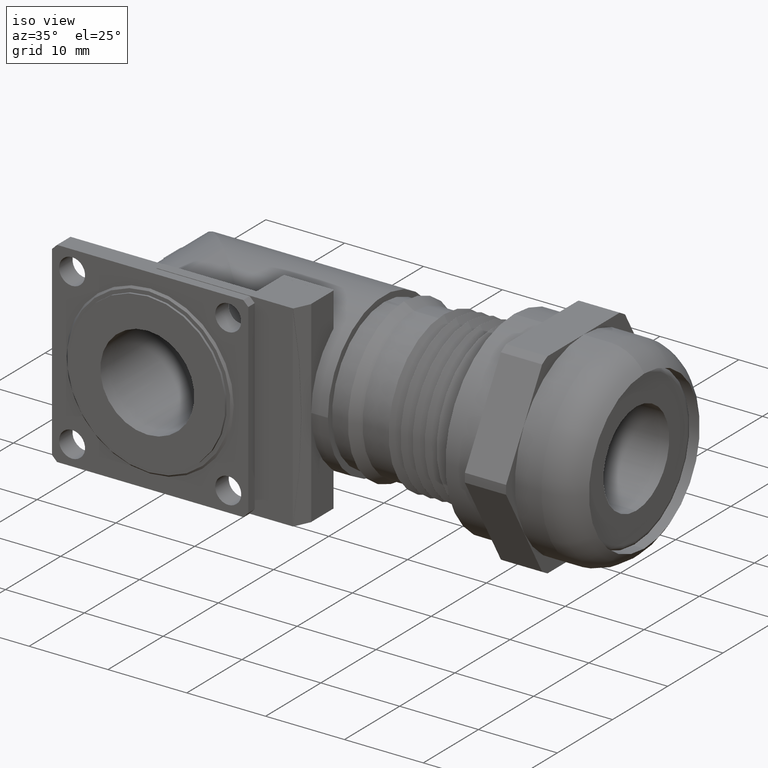
[diagram: clean part render]
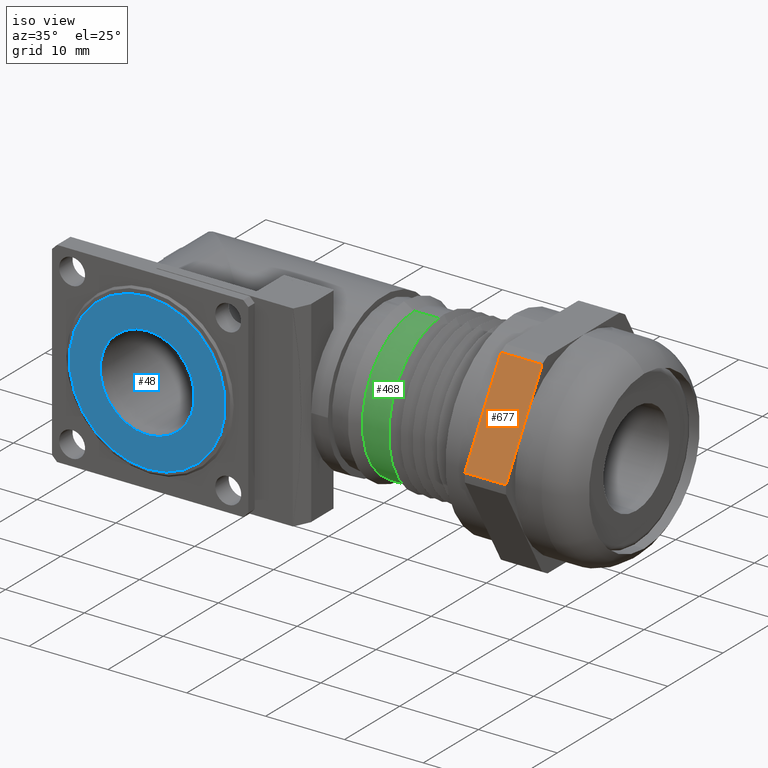
[diagram: same view with three faces highlighted in distinct colors, each labeled with its STEP entity id]
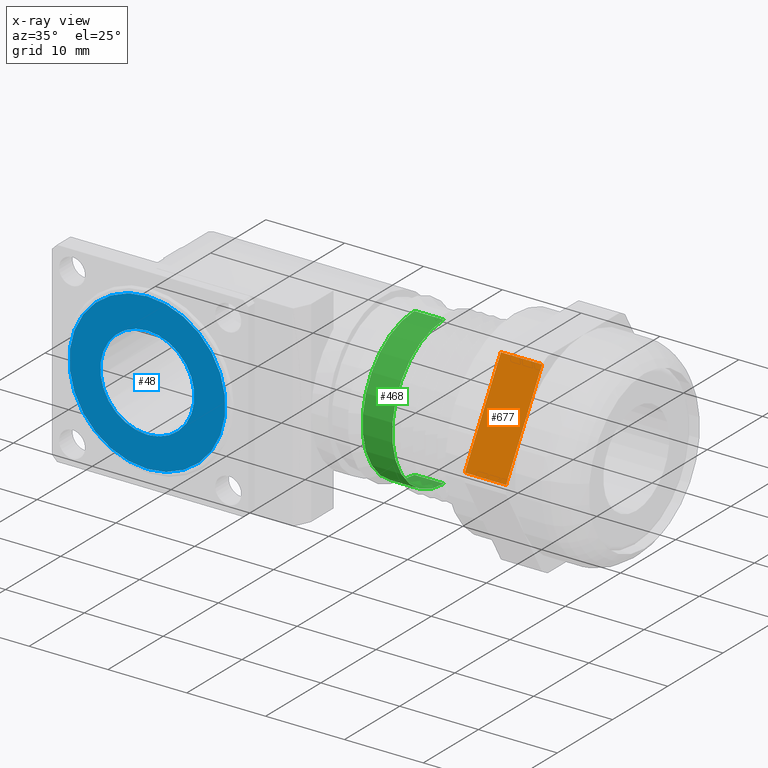
[diagram: x-ray of the same camera — body ghosted, the three highlighted faces saturated]
A machine part, iso view with three faces highlighted in distinct colors.
The next image is the same camera in x-ray (body ghosted, the three faces saturated) — at least one of them is partly hidden behind the body in this view.
Their STEP definitions:

[orange] entity #677 — the highlighted planar face has unit normal (0, -0.866, 0.5).
#299 = EDGE_CURVE ( 'NONE', #1947, #300, #2335, .T. ) ;
#300 = VERTEX_POINT ( 'NONE', #2331 ) ;
#302 = VERTEX_POINT ( 'NONE', #2330 ) ;
#340 = VERTEX_POINT ( 'NONE', #2702 ) ;
#352 = EDGE_CURVE ( 'NONE', #300, #353, #2547, .T. ) ;
#353 = VERTEX_POINT ( 'NONE', #2543 ) ;
#372 = EDGE_CURVE ( 'NONE', #353, #397, #2680, .T. ) ;
#397 = VERTEX_POINT ( 'NONE', #2634 ) ;
#428 = EDGE_CURVE ( 'NONE', #397, #302, #2582, .T. ) ;
#657 = ORIENTED_EDGE ( 'NONE', *, *, #372, .F. ) ;
#662 = ORIENTED_EDGE ( 'NONE', *, *, #1945, .F. ) ;
#663 = ORIENTED_EDGE ( 'NONE', *, *, #428, .F. ) ;
#668 = ORIENTED_EDGE ( 'NONE', *, *, #352, .F. ) ;
#669 = ORIENTED_EDGE ( 'NONE', *, *, #299, .F. ) ;
#677 = ADVANCED_FACE ( 'NONE', ( #2975 ), #2981, .T. ) ;
#678 = EDGE_LOOP ( 'NONE', ( #695, #663, #657, #668, #669, #662 ) ) ;
#695 = ORIENTED_EDGE ( 'NONE', *, *, #1953, .T. ) ;
#1945 = EDGE_CURVE ( 'NONE', #340, #1947, #5200, .T. ) ;
#1947 = VERTEX_POINT ( 'NONE', #5196 ) ;
#1953 = EDGE_CURVE ( 'NONE', #340, #302, #5190, .T. ) ;
#2330 = CARTESIAN_POINT ( 'NONE',  ( 0.9971533900000001400, -0.5529648318954141200, 0.02223681635835987900 ) ) ;
#2331 = CARTESIAN_POINT ( 'NONE',  ( 0.7911456200000003300, -0.2957400638133357300, 0.4677631836416404300 ) ) ;
#2332 = DIRECTION ( 'NONE',  ( 0.0000000000000000000, 0.5000000000000002200, 0.8660254037844383700 ) ) ;
#2333 = VECTOR ( 'NONE', #2332, 39.37007874015748100 ) ;
#2334 = CARTESIAN_POINT ( 'NONE',  ( 0.7911456200000003300, -0.2957400638133359000, 0.4677631836416403200 ) ) ;
#2335 = LINE ( 'NONE', #2334, #2333 ) ;
#2543 = CARTESIAN_POINT ( 'NONE',  ( 0.9971533900000001400, -0.2957400638133357300, 0.4677631836416404300 ) ) ;
#2544 = DIRECTION ( 'NONE',  ( 1.000000000000000000, 0.0000000000000000000, 0.0000000000000000000 ) ) ;
#2545 = VECTOR ( 'NONE', #2544, 39.37007874015748100 ) ;
#2546 = CARTESIAN_POINT ( 'NONE',  ( -0.7897920749122514500, -0.2957400638133357300, 0.4677631836416404300 ) ) ;
#2547 = LINE ( 'NONE', #2546, #2545 ) ;
#2579 = DIRECTION ( 'NONE',  ( 0.0000000000000000000, -0.5000000000000002200, -0.8660254037844384900 ) ) ;
#2580 = VECTOR ( 'NONE', #2579, 39.37007874015749600 ) ;
#2581 = CARTESIAN_POINT ( 'NONE',  ( 0.9971533900000001400, -0.2957400638133359000, 0.4677631836416403200 ) ) ;
#2582 = LINE ( 'NONE', #2581, #2580 ) ;
#2634 = CARTESIAN_POINT ( 'NONE',  ( 0.9971533900000001400, -0.4243524478543747600, 0.2450000000000001600 ) ) ;
#2677 = DIRECTION ( 'NONE',  ( 0.0000000000000000000, -0.5000000000000002200, -0.8660254037844384900 ) ) ;
#2678 = VECTOR ( 'NONE', #2677, 39.37007874015749600 ) ;
#2679 = CARTESIAN_POINT ( 'NONE',  ( 0.9971533900000001400, -0.2957400638133359000, 0.4677631836416403200 ) ) ;
#2680 = LINE ( 'NONE', #2679, #2678 ) ;
#2702 = CARTESIAN_POINT ( 'NONE',  ( 0.7911456200000003300, -0.5529648318954141200, 0.02223681635835984500 ) ) ;
#2975 = FACE_OUTER_BOUND ( 'NONE', #678, .T. ) ;
#2977 = DIRECTION ( 'NONE',  ( 0.0000000000000000000, -0.5000000000000002200, -0.8660254037844384900 ) ) ;
#2978 = DIRECTION ( 'NONE',  ( 0.0000000000000000000, -0.8660254037844386000, 0.5000000000000003300 ) ) ;
#2979 = CARTESIAN_POINT ( 'NONE',  ( -0.7897920749122514500, -0.2957400638133359000, 0.4677631836416403200 ) ) ;
#2980 = AXIS2_PLACEMENT_3D ( 'NONE', #2979, #2978, #2977 ) ;
#2981 = PLANE ( 'NONE',  #2980 ) ;
#5187 = DIRECTION ( 'NONE',  ( 1.000000000000000000, 0.0000000000000000000, 0.0000000000000000000 ) ) ;
#5188 = VECTOR ( 'NONE', #5187, 39.37007874015748100 ) ;
#5189 = CARTESIAN_POINT ( 'NONE',  ( -0.7897920749122514500, -0.5529648318954141200, 0.02223681635835987900 ) ) ;
#5190 = LINE ( 'NONE', #5189, #5188 ) ;
#5196 = CARTESIAN_POINT ( 'NONE',  ( 0.7911456200000003300, -0.4243524478543749800, 0.2450000000000000800 ) ) ;
#5197 = DIRECTION ( 'NONE',  ( 0.0000000000000000000, 0.5000000000000002200, 0.8660254037844383700 ) ) ;
#5198 = VECTOR ( 'NONE', #5197, 39.37007874015748100 ) ;
#5199 = CARTESIAN_POINT ( 'NONE',  ( 0.7911456200000003300, -0.2957400638133359000, 0.4677631836416403200 ) ) ;
#5200 = LINE ( 'NONE', #5199, #5198 ) ;

[blue] entity #48 — the highlighted planar face has unit normal (0, 1, 0).
#5 = ORIENTED_EDGE ( 'NONE', *, *, #39, .T. ) ;
#37 = ORIENTED_EDGE ( 'NONE', *, *, #801, .T. ) ;
#39 = EDGE_CURVE ( 'NONE', #799, #793, #5635, .T. ) ;
#45 = EDGE_LOOP ( 'NONE', ( #37, #5 ) ) ;
#46 = ORIENTED_EDGE ( 'NONE', *, *, #1021, .F. ) ;
#47 = ORIENTED_EDGE ( 'NONE', *, *, #1370, .F. ) ;
#48 = ADVANCED_FACE ( 'NONE', ( #5626, #5625 ), #5624, .F. ) ;
#53 = EDGE_LOOP ( 'NONE', ( #47, #46 ) ) ;
#793 = VERTEX_POINT ( 'NONE', #3301 ) ;
#799 = VERTEX_POINT ( 'NONE', #3218 ) ;
#801 = EDGE_CURVE ( 'NONE', #793, #799, #3217, .T. ) ;
#1004 = VERTEX_POINT ( 'NONE', #3761 ) ;
#1021 = EDGE_CURVE ( 'NONE', #1004, #1117, #3785, .T. ) ;
#1117 = VERTEX_POINT ( 'NONE', #3813 ) ;
#1370 = EDGE_CURVE ( 'NONE', #1117, #1004, #4053, .T. ) ;
#3213 = DIRECTION ( 'NONE',  ( 0.0000000000000000000, 0.0000000000000000000, -1.000000000000000000 ) ) ;
#3214 = DIRECTION ( 'NONE',  ( 0.0000000000000000000, -1.000000000000000000, 0.0000000000000000000 ) ) ;
#3215 = CARTESIAN_POINT ( 'NONE',  ( -0.7999999999999993800, -0.5450000000000002600, 0.0000000000000000000 ) ) ;
#3216 = AXIS2_PLACEMENT_3D ( 'NONE', #3215, #3214, #3213 ) ;
#3217 = CIRCLE ( 'NONE', #3216, 0.3899999999999999600 ) ;
#3218 = CARTESIAN_POINT ( 'NONE',  ( -0.7999999999999993800, -0.5450000000000002600, 0.3899999999999999600 ) ) ;
#3301 = CARTESIAN_POINT ( 'NONE',  ( -0.7999999999999993800, -0.5450000000000002600, -0.3899999999999999600 ) ) ;
#3761 = CARTESIAN_POINT ( 'NONE',  ( -0.8000000000000001600, -0.5450000000000002600, 0.2350000000000009300 ) ) ;
#3781 = DIRECTION ( 'NONE',  ( 0.0000000000000000000, 0.0000000000000000000, -1.000000000000000000 ) ) ;
#3782 = DIRECTION ( 'NONE',  ( 0.0000000000000000000, -1.000000000000000000, 0.0000000000000000000 ) ) ;
#3783 = CARTESIAN_POINT ( 'NONE',  ( -0.7999999999999993800, -0.5450000000000002600, 0.0000000000000000000 ) ) ;
#3784 = AXIS2_PLACEMENT_3D ( 'NONE', #3783, #3782, #3781 ) ;
#3785 = CIRCLE ( 'NONE', #3784, 0.2350000000000009000 ) ;
#3813 = CARTESIAN_POINT ( 'NONE',  ( -0.7999999999999993800, -0.5450000000000002600, -0.2350000000000009000 ) ) ;
#4049 = DIRECTION ( 'NONE',  ( 0.0000000000000000000, 0.0000000000000000000, -1.000000000000000000 ) ) ;
#4050 = DIRECTION ( 'NONE',  ( 0.0000000000000000000, -1.000000000000000000, 0.0000000000000000000 ) ) ;
#4051 = CARTESIAN_POINT ( 'NONE',  ( -0.7999999999999993800, -0.5450000000000002600, 0.0000000000000000000 ) ) ;
#4052 = AXIS2_PLACEMENT_3D ( 'NONE', #4051, #4050, #4049 ) ;
#4053 = CIRCLE ( 'NONE', #4052, 0.2350000000000009000 ) ;
#5620 = DIRECTION ( 'NONE',  ( 0.0000000000000000000, 0.0000000000000000000, 1.000000000000000000 ) ) ;
#5621 = DIRECTION ( 'NONE',  ( 0.0000000000000000000, 1.000000000000000000, 0.0000000000000000000 ) ) ;
#5622 = CARTESIAN_POINT ( 'NONE',  ( -1.035000000000000400, -0.5450000000000002600, 0.0000000000000000000 ) ) ;
#5623 = AXIS2_PLACEMENT_3D ( 'NONE', #5622, #5621, #5620 ) ;
#5624 = PLANE ( 'NONE',  #5623 ) ;
#5625 = FACE_OUTER_BOUND ( 'NONE', #45, .T. ) ;
#5626 = FACE_BOUND ( 'NONE', #53, .T. ) ;
#5631 = DIRECTION ( 'NONE',  ( 0.0000000000000000000, 0.0000000000000000000, -1.000000000000000000 ) ) ;
#5632 = DIRECTION ( 'NONE',  ( 0.0000000000000000000, -1.000000000000000000, 0.0000000000000000000 ) ) ;
#5633 = CARTESIAN_POINT ( 'NONE',  ( -0.7999999999999993800, -0.5450000000000002600, 0.0000000000000000000 ) ) ;
#5634 = AXIS2_PLACEMENT_3D ( 'NONE', #5633, #5632, #5631 ) ;
#5635 = CIRCLE ( 'NONE', #5634, 0.3899999999999999600 ) ;

[green] entity #468 — the highlighted cylindrical surface (partial cylindrical patch) has radius 9.398 mm, axis along (-1, 0, 0).
#468 = ADVANCED_FACE ( 'NONE', ( #2836 ), #2830, .T. ) ;
#469 = EDGE_LOOP ( 'NONE', ( #532, #533, #522, #529 ) ) ;
#492 = EDGE_CURVE ( 'NONE', #1937, #1926, #2719, .T. ) ;
#521 = EDGE_CURVE ( 'NONE', #1891, #1884, #2921, .T. ) ;
#522 = ORIENTED_EDGE ( 'NONE', *, *, #1924, .T. ) ;
#529 = ORIENTED_EDGE ( 'NONE', *, *, #492, .F. ) ;
#532 = ORIENTED_EDGE ( 'NONE', *, *, #1940, .F. ) ;
#533 = ORIENTED_EDGE ( 'NONE', *, *, #521, .T. ) ;
#1884 = VERTEX_POINT ( 'NONE', #5260 ) ;
#1891 = VERTEX_POINT ( 'NONE', #5172 ) ;
#1924 = EDGE_CURVE ( 'NONE', #1884, #1926, #5241, .T. ) ;
#1926 = VERTEX_POINT ( 'NONE', #5237 ) ;
#1937 = VERTEX_POINT ( 'NONE', #5220 ) ;
#1940 = EDGE_CURVE ( 'NONE', #1891, #1937, #5215, .T. ) ;
#2717 = DIRECTION ( 'NONE',  ( -1.000000000000000000, 0.0000000000000000000, 0.0000000000000000000 ) ) ;
#2718 = AXIS2_PLACEMENT_3D ( 'NONE', #2724, #2717, #2820 ) ;
#2719 = CIRCLE ( 'NONE', #2718, 0.3700000000000000000 ) ;
#2724 = CARTESIAN_POINT ( 'NONE',  ( 0.1519615242270661300, 0.0000000000000000000, 0.0000000000000000000 ) ) ;
#2806 = DIRECTION ( 'NONE',  ( 0.0000000000000000000, 0.0000000000000000000, 1.000000000000000000 ) ) ;
#2807 = DIRECTION ( 'NONE',  ( -1.000000000000000000, 0.0000000000000000000, 0.0000000000000000000 ) ) ;
#2820 = DIRECTION ( 'NONE',  ( 0.0000000000000000000, 0.0000000000000000000, 1.000000000000000000 ) ) ;
#2821 = CARTESIAN_POINT ( 'NONE',  ( -1.449317696122846000, 0.0000000000000000000, 0.0000000000000000000 ) ) ;
#2822 = AXIS2_PLACEMENT_3D ( 'NONE', #2821, #2807, #2806 ) ;
#2830 = CYLINDRICAL_SURFACE ( 'NONE', #2822, 0.3700000000000000000 ) ;
#2836 = FACE_OUTER_BOUND ( 'NONE', #469, .T. ) ;
#2917 = DIRECTION ( 'NONE',  ( 0.0000000000000000000, 0.0000000000000000000, 1.000000000000000000 ) ) ;
#2918 = DIRECTION ( 'NONE',  ( -1.000000000000000000, 0.0000000000000000000, 0.0000000000000000000 ) ) ;
#2919 = CARTESIAN_POINT ( 'NONE',  ( 0.3000000000000001000, 0.0000000000000000000, 0.0000000000000000000 ) ) ;
#2920 = AXIS2_PLACEMENT_3D ( 'NONE', #2919, #2918, #2917 ) ;
#2921 = CIRCLE ( 'NONE', #2920, 0.3700000000000000000 ) ;
#5172 = CARTESIAN_POINT ( 'NONE',  ( 0.3000000000000001000, 4.531193156845207300E-017, -0.3700000000000000000 ) ) ;
#5212 = DIRECTION ( 'NONE',  ( -1.000000000000000000, 0.0000000000000000000, 0.0000000000000000000 ) ) ;
#5213 = VECTOR ( 'NONE', #5212, 39.37007874015748100 ) ;
#5214 = CARTESIAN_POINT ( 'NONE',  ( -1.449317696122846000, 4.531193156845207300E-017, -0.3700000000000000000 ) ) ;
#5215 = LINE ( 'NONE', #5214, #5213 ) ;
#5220 = CARTESIAN_POINT ( 'NONE',  ( 0.1519615242270661300, 4.714890176717310500E-017, -0.3700000000000000000 ) ) ;
#5237 = CARTESIAN_POINT ( 'NONE',  ( 0.1519615242270661300, 0.0000000000000000000, 0.3700000000000000000 ) ) ;
#5238 = DIRECTION ( 'NONE',  ( -1.000000000000000000, 0.0000000000000000000, 0.0000000000000000000 ) ) ;
#5239 = VECTOR ( 'NONE', #5238, 39.37007874015748100 ) ;
#5240 = CARTESIAN_POINT ( 'NONE',  ( -1.449317696122846000, 0.0000000000000000000, 0.3700000000000000000 ) ) ;
#5241 = LINE ( 'NONE', #5240, #5239 ) ;
#5260 = CARTESIAN_POINT ( 'NONE',  ( 0.3000000000000001000, 0.0000000000000000000, 0.3700000000000000000 ) ) ;